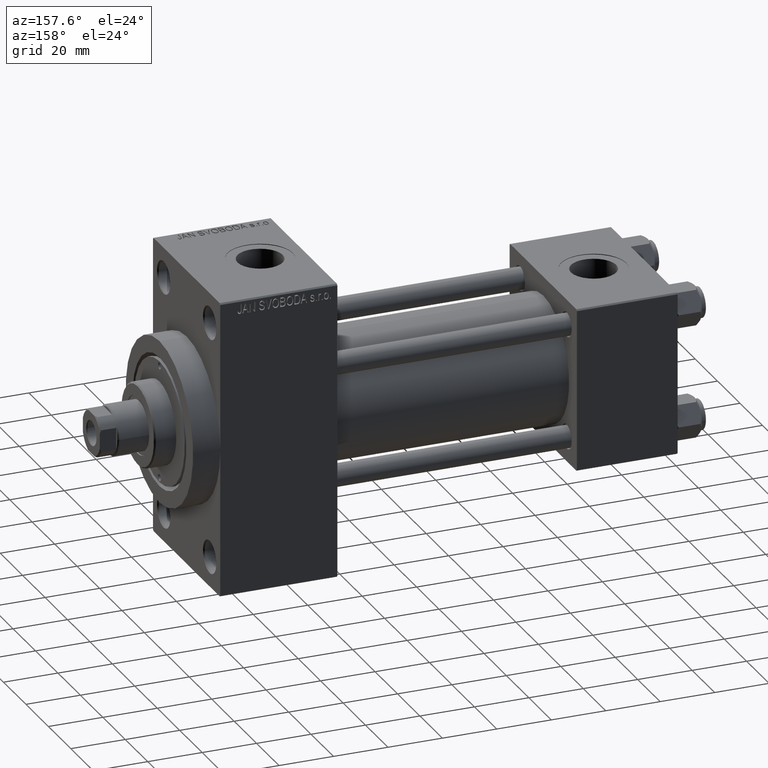
[diagram: clean part render]
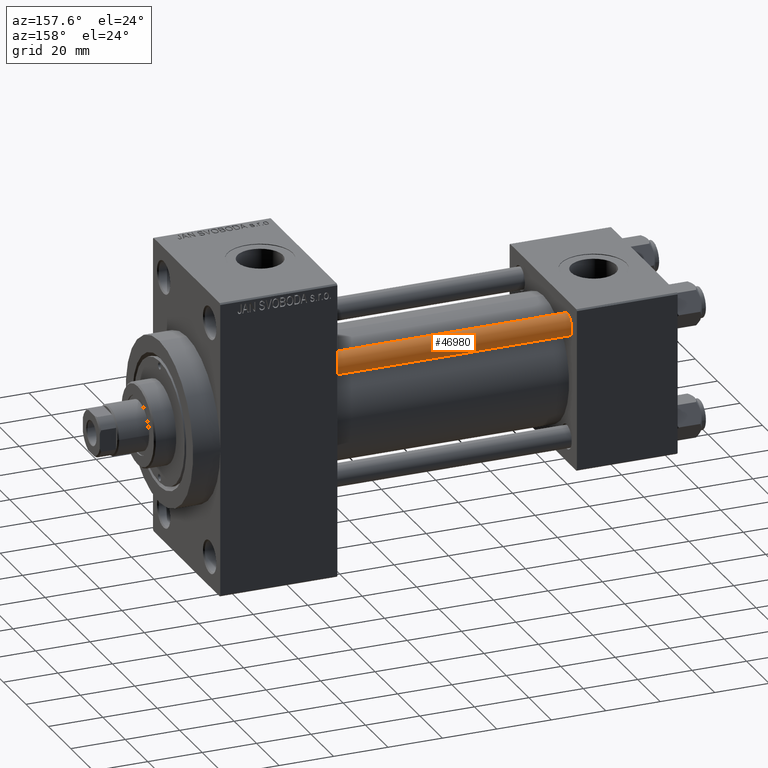
[diagram: same view with one face highlighted and labeled with its STEP entity id]
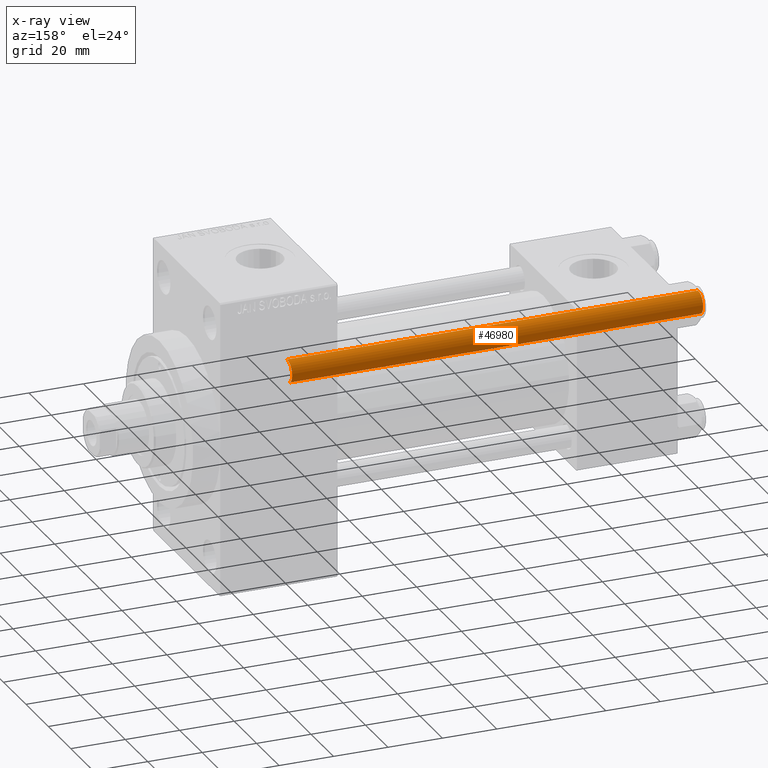
[diagram: x-ray of the same camera — body ghosted, the highlighted face saturated]
A machine part, auxiliary view. The second image highlights one B-rep face of the part: STEP entity #46980.
The next image is the same camera in x-ray: the body ghosted, the highlighted face saturated — about 0% of this face is hidden behind the body in this view.
In plain terms, the highlighted cylindrical surface (edge-blend (fillet) strip) has radius 4 mm, axis along (-1, -0, 0).
Its self-contained STEP definition (entity closure, byte-faithful):
#1799 = ORIENTED_EDGE ( 'NONE', *, *, #34172, .T. ) ;
#3492 = CARTESIAN_POINT ( 'NONE',  ( 4.000000000000000000, 4.898587196589412829E-16, 0.5000000000000281997 ) ) ;
#4815 = AXIS2_PLACEMENT_3D ( 'NONE', #41974, #42453, #27790 ) ;
#4898 = ORIENTED_EDGE ( 'NONE', *, *, #46753, .F. ) ;
#4943 = DIRECTION ( 'NONE',  ( 1.000000000000000000, 0.000000000000000000, 0.000000000000000000 ) ) ;
#5589 = CARTESIAN_POINT ( 'NONE',  ( 0.000000000000000000, 0.000000000000000000, 152.0000000000000000 ) ) ;
#6131 = CARTESIAN_POINT ( 'NONE',  ( -4.000000000000000000, 0.000000000000000000, 152.0000000000000000 ) ) ;
#6729 = VERTEX_POINT ( 'NONE', #14418 ) ;
#6939 = CARTESIAN_POINT ( 'NONE',  ( 4.000000000000000000, 4.898587196589412829E-16, 152.0000000000000000 ) ) ;
#7734 = AXIS2_PLACEMENT_3D ( 'NONE', #5589, #20215, #9658 ) ;
#9658 = DIRECTION ( 'NONE',  ( -1.000000000000000000, 0.000000000000000000, 0.000000000000000000 ) ) ;
#9699 = EDGE_LOOP ( 'NONE', ( #22522, #1799, #14111, #4898 ) ) ;
#10997 = DIRECTION ( 'NONE',  ( -0.000000000000000000, -0.000000000000000000, -1.000000000000000000 ) ) ;
#14111 = ORIENTED_EDGE ( 'NONE', *, *, #35424, .T. ) ;
#14418 = CARTESIAN_POINT ( 'NONE',  ( 4.000000000000000000, 4.898587196589412829E-16, 151.5000000000000284 ) ) ;
#17840 = VERTEX_POINT ( 'NONE', #3492 ) ;
#18432 = LINE ( 'NONE', #6939, #36995 ) ;
#18456 = VECTOR ( 'NONE', #21218, 1000.000000000000000 ) ;
#20215 = DIRECTION ( 'NONE',  ( -0.000000000000000000, -0.000000000000000000, -1.000000000000000000 ) ) ;
#20336 = CIRCLE ( 'NONE', #36439, 4.000000000000000000 ) ;
#21218 = DIRECTION ( 'NONE',  ( -0.000000000000000000, -0.000000000000000000, -1.000000000000000000 ) ) ;
#22411 = CARTESIAN_POINT ( 'NONE',  ( -4.000000000000000000, 0.000000000000000000, 0.5000000000000281997 ) ) ;
#22522 = ORIENTED_EDGE ( 'NONE', *, *, #45429, .T. ) ;
#22919 = CARTESIAN_POINT ( 'NONE',  ( 0.000000000000000000, 0.000000000000000000, 151.5000000000000284 ) ) ;
#24042 = FACE_OUTER_BOUND ( 'NONE', #9699, .T. ) ;
#25488 = CIRCLE ( 'NONE', #4815, 4.000000000000000000 ) ;
#27790 = DIRECTION ( 'NONE',  ( 1.000000000000000000, 0.000000000000000000, 0.000000000000000000 ) ) ;
#31733 = CYLINDRICAL_SURFACE ( 'NONE', #7734, 4.000000000000000000 ) ;
#32962 = CARTESIAN_POINT ( 'NONE',  ( -4.000000000000000000, 0.000000000000000000, 151.5000000000000284 ) ) ;
#34172 = EDGE_CURVE ( 'NONE', #6729, #17840, #18432, .T. ) ;
#35424 = EDGE_CURVE ( 'NONE', #17840, #36254, #25488, .T. ) ;
#36254 = VERTEX_POINT ( 'NONE', #22411 ) ;
#36439 = AXIS2_PLACEMENT_3D ( 'NONE', #22919, #45513, #4943 ) ;
#36995 = VECTOR ( 'NONE', #10997, 1000.000000000000000 ) ;
#39244 = LINE ( 'NONE', #6131, #18456 ) ;
#41974 = CARTESIAN_POINT ( 'NONE',  ( 0.000000000000000000, 0.000000000000000000, 0.5000000000000281997 ) ) ;
#42453 = DIRECTION ( 'NONE',  ( -0.000000000000000000, -0.000000000000000000, 1.000000000000000000 ) ) ;
#43750 = VERTEX_POINT ( 'NONE', #32962 ) ;
#45429 = EDGE_CURVE ( 'NONE', #43750, #6729, #20336, .T. ) ;
#45513 = DIRECTION ( 'NONE',  ( 0.000000000000000000, 0.000000000000000000, -1.000000000000000000 ) ) ;
#46753 = EDGE_CURVE ( 'NONE', #43750, #36254, #39244, .T. ) ;
#46980 = ADVANCED_FACE ( 'NONE', ( #24042 ), #31733, .T. ) ;